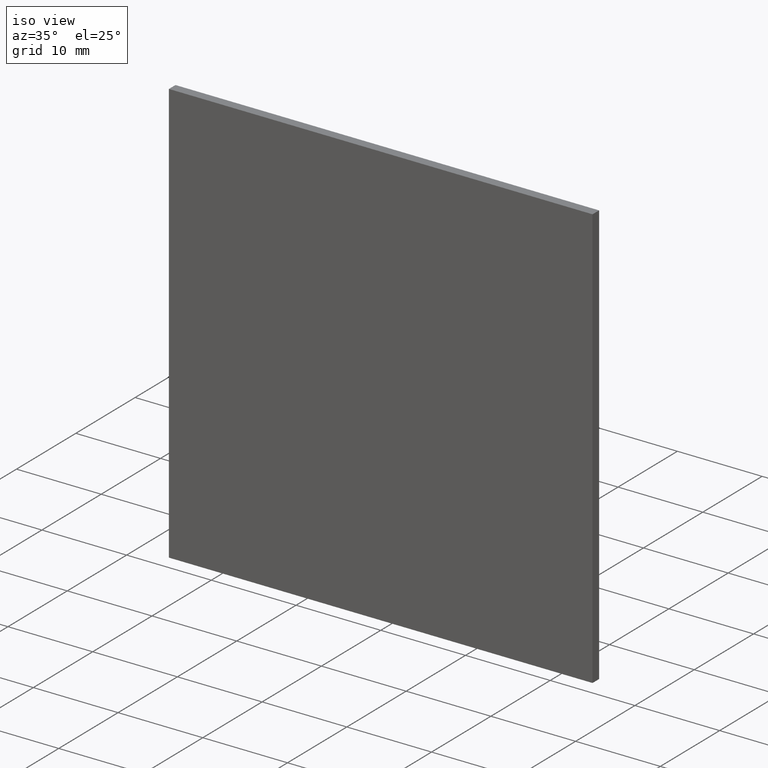
[diagram: clean part render]
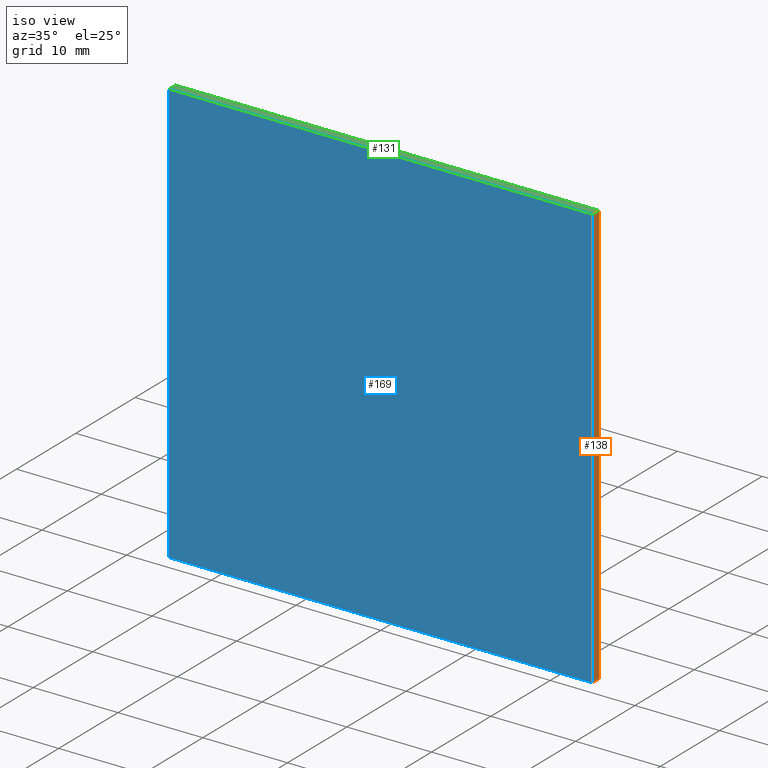
[diagram: same view with three faces highlighted in distinct colors, each labeled with its STEP entity id]
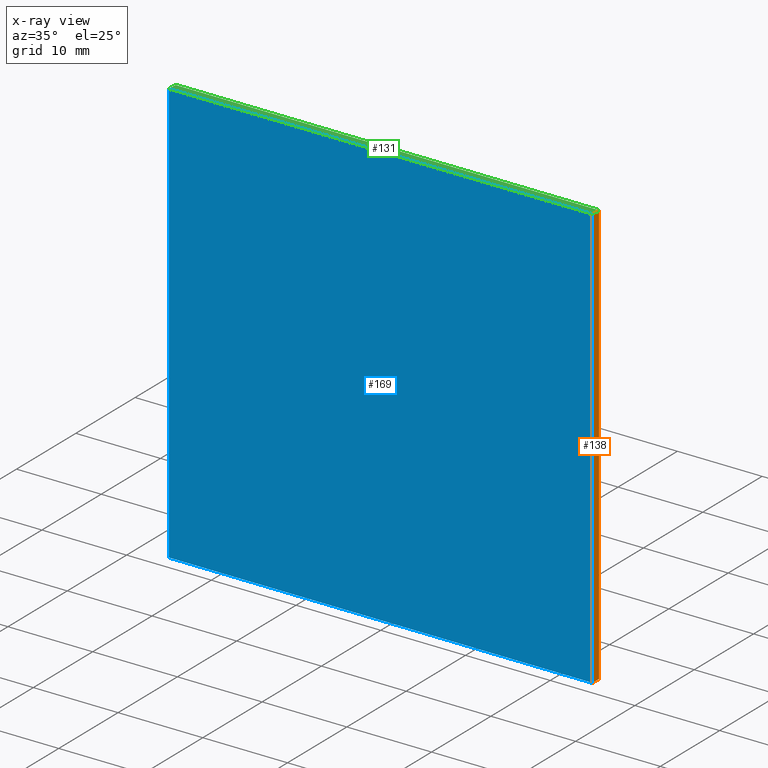
[diagram: x-ray of the same camera — body ghosted, the three highlighted faces saturated]
A machine part, iso view with three faces highlighted in distinct colors.
The next image is the same camera in x-ray (body ghosted, the three faces saturated) — at least one of them is partly hidden behind the body in this view.
Their STEP definitions:

[orange] entity #138 — the highlighted planar face has unit normal (-1, 0, 0).
#11 = VECTOR ( 'NONE', #195, 1000.000000000000000 ) ;
#12 = VECTOR ( 'NONE', #103, 1000.000000000000000 ) ;
#15 = AXIS2_PLACEMENT_3D ( 'NONE', #35, #89, #196 ) ;
#17 = VERTEX_POINT ( 'NONE', #178 ) ;
#19 = VECTOR ( 'NONE', #50, 1000.000000000000000 ) ;
#23 = VERTEX_POINT ( 'NONE', #144 ) ;
#32 = ORIENTED_EDGE ( 'NONE', *, *, #49, .F. ) ;
#35 = CARTESIAN_POINT ( 'NONE',  ( 24.99999999999999600, 1.100000000000000100, -25.00000000000000000 ) ) ;
#40 = EDGE_CURVE ( 'NONE', #51, #23, #174, .T. ) ;
#46 = EDGE_LOOP ( 'NONE', ( #192, #32, #87, #202 ) ) ;
#49 = EDGE_CURVE ( 'NONE', #147, #17, #61, .T. ) ;
#50 = DIRECTION ( 'NONE',  ( -0.0000000000000000000, -1.000000000000000000, -0.0000000000000000000 ) ) ;
#51 = VERTEX_POINT ( 'NONE', #86 ) ;
#56 = VECTOR ( 'NONE', #93, 1000.000000000000000 ) ;
#61 = LINE ( 'NONE', #179, #11 ) ;
#86 = CARTESIAN_POINT ( 'NONE',  ( 25.00000000000000400, 1.100000000000000100, 25.00000000000000000 ) ) ;
#87 = ORIENTED_EDGE ( 'NONE', *, *, #194, .F. ) ;
#89 = DIRECTION ( 'NONE',  ( -1.000000000000000000, 0.0000000000000000000, 1.387778780781445700E-016 ) ) ;
#90 = CARTESIAN_POINT ( 'NONE',  ( 24.99999999999999600, 0.0000000000000000000, -25.00000000000000000 ) ) ;
#93 = DIRECTION ( 'NONE',  ( -1.387778780781445700E-016, -0.0000000000000000000, -1.000000000000000000 ) ) ;
#103 = DIRECTION ( 'NONE',  ( -1.387778780781445700E-016, -0.0000000000000000000, -1.000000000000000000 ) ) ;
#112 = LINE ( 'NONE', #90, #12 ) ;
#127 = CARTESIAN_POINT ( 'NONE',  ( 25.00000000000000400, 1.100000000000000100, 25.00000000000000000 ) ) ;
#128 = CARTESIAN_POINT ( 'NONE',  ( 24.99999999999999600, 1.100000000000000100, -25.00000000000000000 ) ) ;
#138 = ADVANCED_FACE ( 'NONE', ( #201 ), #146, .F. ) ;
#144 = CARTESIAN_POINT ( 'NONE',  ( 25.00000000000000400, 0.0000000000000000000, 25.00000000000000000 ) ) ;
#146 = PLANE ( 'NONE',  #15 ) ;
#147 = VERTEX_POINT ( 'NONE', #128 ) ;
#153 = EDGE_CURVE ( 'NONE', #23, #17, #112, .T. ) ;
#163 = CARTESIAN_POINT ( 'NONE',  ( 24.99999999999999600, 1.100000000000000100, -25.00000000000000000 ) ) ;
#174 = LINE ( 'NONE', #127, #19 ) ;
#178 = CARTESIAN_POINT ( 'NONE',  ( 24.99999999999999600, 0.0000000000000000000, -25.00000000000000000 ) ) ;
#179 = CARTESIAN_POINT ( 'NONE',  ( 24.99999999999999600, 1.100000000000000100, -25.00000000000000000 ) ) ;
#181 = LINE ( 'NONE', #163, #56 ) ;
#192 = ORIENTED_EDGE ( 'NONE', *, *, #153, .T. ) ;
#194 = EDGE_CURVE ( 'NONE', #51, #147, #181, .T. ) ;
#195 = DIRECTION ( 'NONE',  ( -0.0000000000000000000, -1.000000000000000000, -0.0000000000000000000 ) ) ;
#196 = DIRECTION ( 'NONE',  ( 1.387778780781445700E-016, 0.0000000000000000000, 1.000000000000000000 ) ) ;
#201 = FACE_OUTER_BOUND ( 'NONE', #46, .T. ) ;
#202 = ORIENTED_EDGE ( 'NONE', *, *, #40, .T. ) ;

[blue] entity #169 — the highlighted planar face has unit normal (0, 1, 0).
#1 = VECTOR ( 'NONE', #55, 1000.000000000000000 ) ;
#3 = VERTEX_POINT ( 'NONE', #71 ) ;
#5 = DIRECTION ( 'NONE',  ( 1.387778780781445700E-016, 0.0000000000000000000, 1.000000000000000000 ) ) ;
#12 = VECTOR ( 'NONE', #103, 1000.000000000000000 ) ;
#17 = VERTEX_POINT ( 'NONE', #178 ) ;
#23 = VERTEX_POINT ( 'NONE', #144 ) ;
#24 = ORIENTED_EDGE ( 'NONE', *, *, #164, .F. ) ;
#39 = CARTESIAN_POINT ( 'NONE',  ( -25.00000000000000400, 0.0000000000000000000, -25.00000000000000000 ) ) ;
#45 = AXIS2_PLACEMENT_3D ( 'NONE', #197, #148, #57 ) ;
#55 = DIRECTION ( 'NONE',  ( -1.000000000000000000, -0.0000000000000000000, -0.0000000000000000000 ) ) ;
#57 = DIRECTION ( 'NONE',  ( 0.0000000000000000000, -0.0000000000000000000, 1.000000000000000000 ) ) ;
#63 = LINE ( 'NONE', #119, #1 ) ;
#71 = CARTESIAN_POINT ( 'NONE',  ( -25.00000000000000400, 0.0000000000000000000, -25.00000000000000000 ) ) ;
#74 = DIRECTION ( 'NONE',  ( 1.000000000000000000, 0.0000000000000000000, 0.0000000000000000000 ) ) ;
#83 = EDGE_LOOP ( 'NONE', ( #158, #176, #24, #172 ) ) ;
#85 = VERTEX_POINT ( 'NONE', #99 ) ;
#90 = CARTESIAN_POINT ( 'NONE',  ( 24.99999999999999600, 0.0000000000000000000, -25.00000000000000000 ) ) ;
#91 = LINE ( 'NONE', #39, #175 ) ;
#99 = CARTESIAN_POINT ( 'NONE',  ( -24.99999999999999600, 0.0000000000000000000, 25.00000000000000000 ) ) ;
#103 = DIRECTION ( 'NONE',  ( -1.387778780781445700E-016, -0.0000000000000000000, -1.000000000000000000 ) ) ;
#112 = LINE ( 'NONE', #90, #12 ) ;
#119 = CARTESIAN_POINT ( 'NONE',  ( -25.00000000000000400, 0.0000000000000000000, -25.00000000000000000 ) ) ;
#132 = PLANE ( 'NONE',  #45 ) ;
#135 = EDGE_CURVE ( 'NONE', #85, #23, #173, .T. ) ;
#144 = CARTESIAN_POINT ( 'NONE',  ( 25.00000000000000400, 0.0000000000000000000, 25.00000000000000000 ) ) ;
#148 = DIRECTION ( 'NONE',  ( 0.0000000000000000000, 1.000000000000000000, 0.0000000000000000000 ) ) ;
#151 = EDGE_CURVE ( 'NONE', #17, #3, #63, .T. ) ;
#153 = EDGE_CURVE ( 'NONE', #23, #17, #112, .T. ) ;
#158 = ORIENTED_EDGE ( 'NONE', *, *, #153, .F. ) ;
#161 = CARTESIAN_POINT ( 'NONE',  ( -24.99999999999999600, 0.0000000000000000000, 25.00000000000000000 ) ) ;
#164 = EDGE_CURVE ( 'NONE', #3, #85, #91, .T. ) ;
#169 = ADVANCED_FACE ( 'NONE', ( #170 ), #132, .F. ) ;
#170 = FACE_OUTER_BOUND ( 'NONE', #83, .T. ) ;
#172 = ORIENTED_EDGE ( 'NONE', *, *, #151, .F. ) ;
#173 = LINE ( 'NONE', #161, #186 ) ;
#175 = VECTOR ( 'NONE', #5, 1000.000000000000000 ) ;
#176 = ORIENTED_EDGE ( 'NONE', *, *, #135, .F. ) ;
#178 = CARTESIAN_POINT ( 'NONE',  ( 24.99999999999999600, 0.0000000000000000000, -25.00000000000000000 ) ) ;
#186 = VECTOR ( 'NONE', #74, 1000.000000000000000 ) ;
#197 = CARTESIAN_POINT ( 'NONE',  ( 0.0000000000000000000, 0.0000000000000000000, 0.0000000000000000000 ) ) ;

[green] entity #131 — the highlighted planar face has unit normal (0, 0, -1).
#14 = VECTOR ( 'NONE', #18, 1000.000000000000000 ) ;
#18 = DIRECTION ( 'NONE',  ( 1.000000000000000000, 0.0000000000000000000, 0.0000000000000000000 ) ) ;
#19 = VECTOR ( 'NONE', #50, 1000.000000000000000 ) ;
#22 = CARTESIAN_POINT ( 'NONE',  ( -24.99999999999999600, 1.100000000000000100, 25.00000000000000000 ) ) ;
#23 = VERTEX_POINT ( 'NONE', #144 ) ;
#37 = PLANE ( 'NONE',  #94 ) ;
#40 = EDGE_CURVE ( 'NONE', #51, #23, #174, .T. ) ;
#44 = EDGE_CURVE ( 'NONE', #108, #51, #66, .T. ) ;
#50 = DIRECTION ( 'NONE',  ( -0.0000000000000000000, -1.000000000000000000, -0.0000000000000000000 ) ) ;
#51 = VERTEX_POINT ( 'NONE', #86 ) ;
#54 = DIRECTION ( 'NONE',  ( -1.000000000000000000, 0.0000000000000000000, -0.0000000000000000000 ) ) ;
#66 = LINE ( 'NONE', #115, #14 ) ;
#69 = ORIENTED_EDGE ( 'NONE', *, *, #135, .T. ) ;
#73 = CARTESIAN_POINT ( 'NONE',  ( -24.99999999999999600, 1.100000000000000100, 25.00000000000000000 ) ) ;
#74 = DIRECTION ( 'NONE',  ( 1.000000000000000000, 0.0000000000000000000, 0.0000000000000000000 ) ) ;
#81 = VECTOR ( 'NONE', #130, 1000.000000000000000 ) ;
#85 = VERTEX_POINT ( 'NONE', #99 ) ;
#86 = CARTESIAN_POINT ( 'NONE',  ( 25.00000000000000400, 1.100000000000000100, 25.00000000000000000 ) ) ;
#94 = AXIS2_PLACEMENT_3D ( 'NONE', #22, #160, #54 ) ;
#99 = CARTESIAN_POINT ( 'NONE',  ( -24.99999999999999600, 0.0000000000000000000, 25.00000000000000000 ) ) ;
#100 = LINE ( 'NONE', #145, #81 ) ;
#108 = VERTEX_POINT ( 'NONE', #73 ) ;
#115 = CARTESIAN_POINT ( 'NONE',  ( -24.99999999999999600, 1.100000000000000100, 25.00000000000000000 ) ) ;
#124 = ORIENTED_EDGE ( 'NONE', *, *, #40, .F. ) ;
#126 = FACE_OUTER_BOUND ( 'NONE', #183, .T. ) ;
#127 = CARTESIAN_POINT ( 'NONE',  ( 25.00000000000000400, 1.100000000000000100, 25.00000000000000000 ) ) ;
#130 = DIRECTION ( 'NONE',  ( -0.0000000000000000000, -1.000000000000000000, -0.0000000000000000000 ) ) ;
#131 = ADVANCED_FACE ( 'NONE', ( #126 ), #37, .F. ) ;
#135 = EDGE_CURVE ( 'NONE', #85, #23, #173, .T. ) ;
#144 = CARTESIAN_POINT ( 'NONE',  ( 25.00000000000000400, 0.0000000000000000000, 25.00000000000000000 ) ) ;
#145 = CARTESIAN_POINT ( 'NONE',  ( -24.99999999999999600, 1.100000000000000100, 25.00000000000000000 ) ) ;
#149 = EDGE_CURVE ( 'NONE', #108, #85, #100, .T. ) ;
#160 = DIRECTION ( 'NONE',  ( 0.0000000000000000000, 0.0000000000000000000, -1.000000000000000000 ) ) ;
#161 = CARTESIAN_POINT ( 'NONE',  ( -24.99999999999999600, 0.0000000000000000000, 25.00000000000000000 ) ) ;
#168 = ORIENTED_EDGE ( 'NONE', *, *, #149, .T. ) ;
#173 = LINE ( 'NONE', #161, #186 ) ;
#174 = LINE ( 'NONE', #127, #19 ) ;
#183 = EDGE_LOOP ( 'NONE', ( #69, #124, #188, #168 ) ) ;
#186 = VECTOR ( 'NONE', #74, 1000.000000000000000 ) ;
#188 = ORIENTED_EDGE ( 'NONE', *, *, #44, .F. ) ;